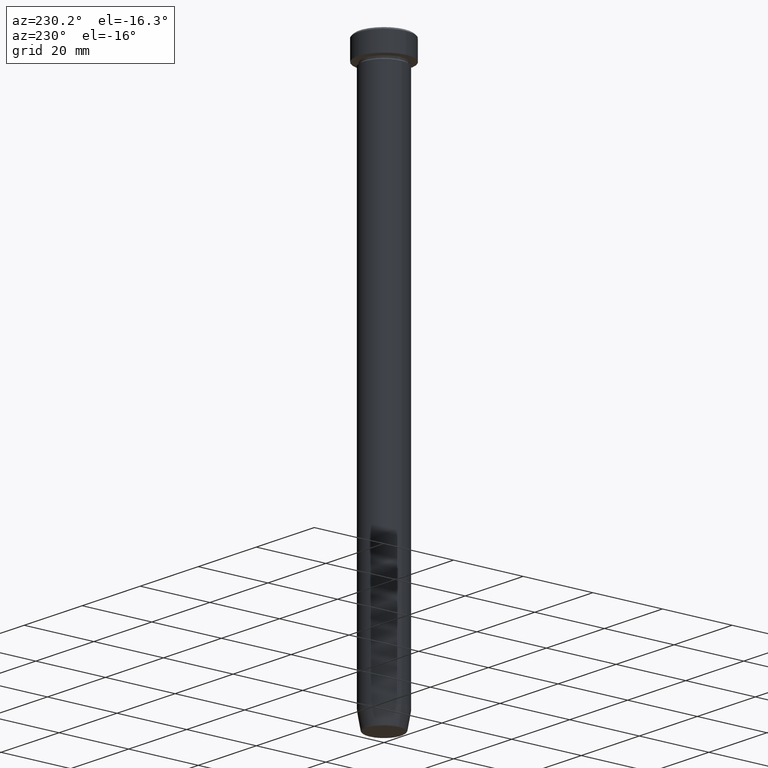
[diagram: clean part render]
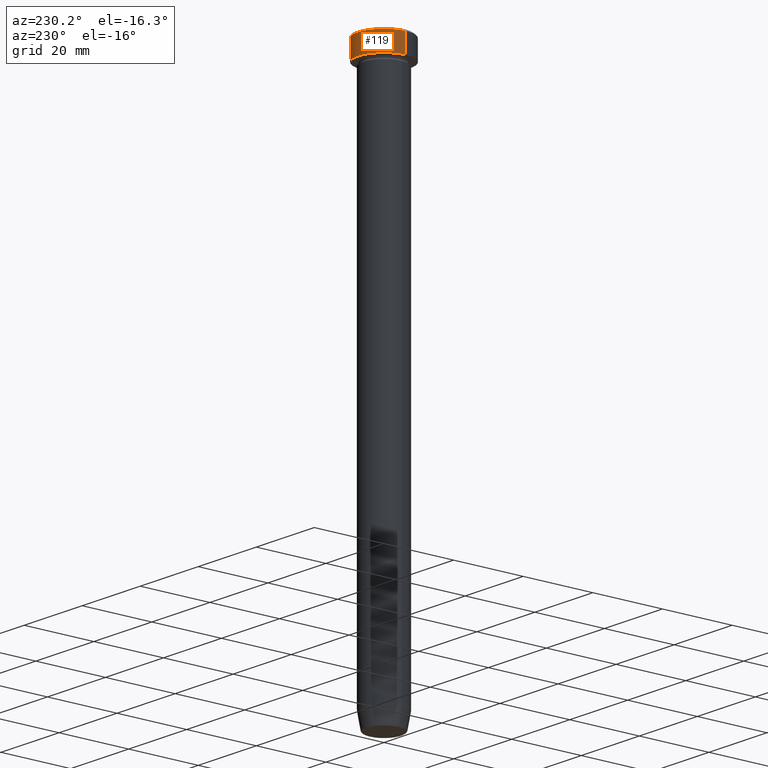
[diagram: same view with one face highlighted and labeled with its STEP entity id]
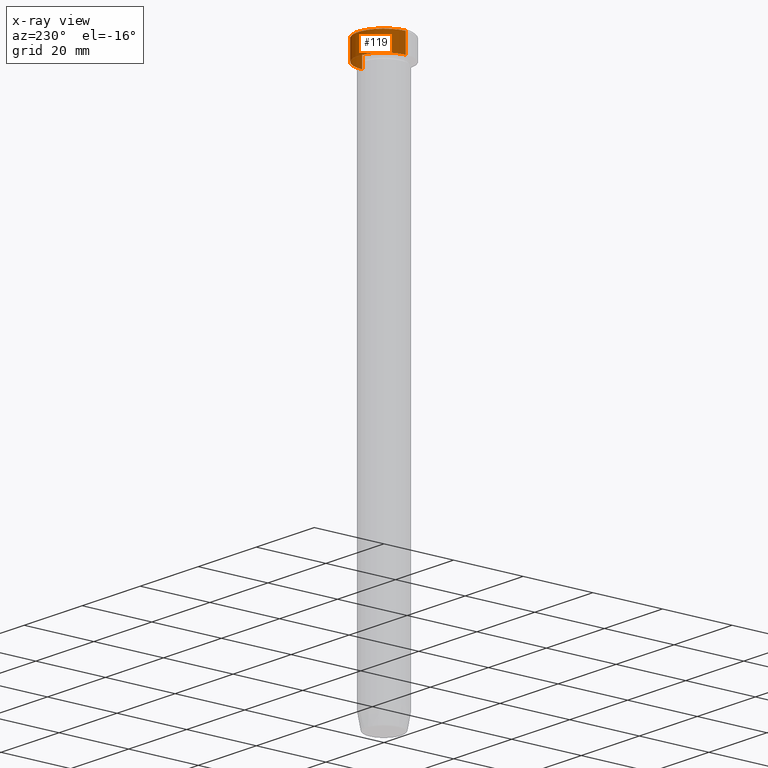
[diagram: x-ray of the same camera — body ghosted, the highlighted face saturated]
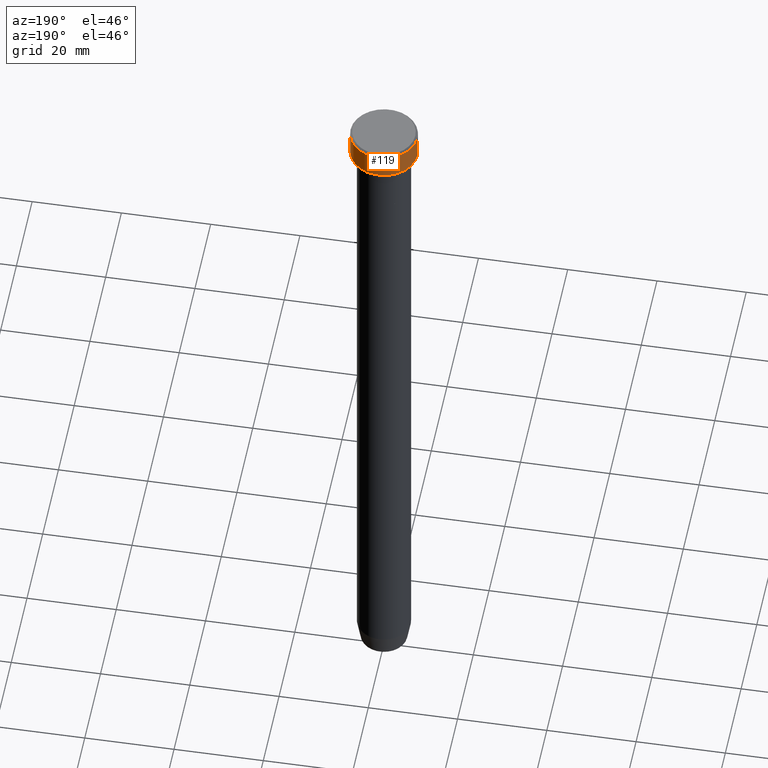
[diagram: same view with one face highlighted and labeled with its STEP entity id]
A machine part, auxiliary view. The second image highlights one B-rep face of the part: STEP entity #119.
The next image is the same camera in x-ray: the body ghosted, the highlighted face saturated — about 0% of this face is hidden behind the body in this view.
A second angle (auxiliary view) of the same face is appended — the face is thin or edge-on in the first view.
In plain terms, the highlighted cylindrical surface (edge-blend (fillet) strip) has radius 7.5 mm, axis along (-0, -0, 1).
Its self-contained STEP definition (entity closure, byte-faithful):
#15 = VERTEX_POINT ( 'NONE', #91 ) ;
#17 = DIRECTION ( 'NONE',  ( 0.000000000000000000, 0.000000000000000000, -1.000000000000000000 ) ) ;
#49 = VERTEX_POINT ( 'NONE', #286 ) ;
#91 = CARTESIAN_POINT ( 'NONE',  ( 7.500000000000000000, 0.000000000000000000, -6.000000000000000000 ) ) ;
#96 = DIRECTION ( 'NONE',  ( -0.000000000000000000, -0.000000000000000000, 1.000000000000000000 ) ) ;
#110 = CIRCLE ( 'NONE', #563, 7.500000000000000000 ) ;
#111 = EDGE_CURVE ( 'NONE', #203, #599, #125, .T. ) ;
#119 = ADVANCED_FACE ( 'NONE', ( #295 ), #579, .T. ) ;
#123 = CARTESIAN_POINT ( 'NONE',  ( -7.500000000000000000, 9.184850993605147944E-16, 0.000000000000000000 ) ) ;
#125 = LINE ( 'NONE', #123, #527 ) ;
#135 = LINE ( 'NONE', #315, #511 ) ;
#158 = CARTESIAN_POINT ( 'NONE',  ( 0.000000000000000000, 0.000000000000000000, -0.4999999999999987232 ) ) ;
#164 = CARTESIAN_POINT ( 'NONE',  ( 0.000000000000000000, 0.000000000000000000, 0.000000000000000000 ) ) ;
#193 = EDGE_LOOP ( 'NONE', ( #591, #238, #483, #316 ) ) ;
#203 = VERTEX_POINT ( 'NONE', #543 ) ;
#228 = CARTESIAN_POINT ( 'NONE',  ( -7.500000000000000000, 9.184850993605147944E-16, -0.4999999999999987232 ) ) ;
#238 = ORIENTED_EDGE ( 'NONE', *, *, #111, .T. ) ;
#252 = DIRECTION ( 'NONE',  ( 1.000000000000000000, 0.000000000000000000, 0.000000000000000000 ) ) ;
#264 = CARTESIAN_POINT ( 'NONE',  ( 0.000000000000000000, 0.000000000000000000, -6.000000000000000000 ) ) ;
#266 = EDGE_CURVE ( 'NONE', #15, #49, #135, .T. ) ;
#286 = CARTESIAN_POINT ( 'NONE',  ( 7.500000000000000000, 0.000000000000000000, -0.4999999999999987232 ) ) ;
#295 = FACE_OUTER_BOUND ( 'NONE', #193, .T. ) ;
#311 = DIRECTION ( 'NONE',  ( -0.000000000000000000, -0.000000000000000000, 1.000000000000000000 ) ) ;
#315 = CARTESIAN_POINT ( 'NONE',  ( 7.500000000000000000, 0.000000000000000000, 0.000000000000000000 ) ) ;
#316 = ORIENTED_EDGE ( 'NONE', *, *, #266, .F. ) ;
#395 = DIRECTION ( 'NONE',  ( -0.000000000000000000, -0.000000000000000000, 1.000000000000000000 ) ) ;
#397 = EDGE_CURVE ( 'NONE', #15, #203, #110, .T. ) ;
#403 = AXIS2_PLACEMENT_3D ( 'NONE', #158, #17, #252 ) ;
#422 = EDGE_CURVE ( 'NONE', #599, #49, #528, .T. ) ;
#425 = AXIS2_PLACEMENT_3D ( 'NONE', #164, #311, #501 ) ;
#428 = DIRECTION ( 'NONE',  ( -0.000000000000000000, -0.000000000000000000, 1.000000000000000000 ) ) ;
#433 = DIRECTION ( 'NONE',  ( 1.000000000000000000, 0.000000000000000000, 0.000000000000000000 ) ) ;
#483 = ORIENTED_EDGE ( 'NONE', *, *, #422, .T. ) ;
#501 = DIRECTION ( 'NONE',  ( 1.000000000000000000, 0.000000000000000000, 0.000000000000000000 ) ) ;
#511 = VECTOR ( 'NONE', #96, 1000.000000000000000 ) ;
#527 = VECTOR ( 'NONE', #428, 1000.000000000000000 ) ;
#528 = CIRCLE ( 'NONE', #403, 7.500000000000000000 ) ;
#543 = CARTESIAN_POINT ( 'NONE',  ( -7.500000000000000000, 9.184850993605147944E-16, -6.000000000000000000 ) ) ;
#563 = AXIS2_PLACEMENT_3D ( 'NONE', #264, #395, #433 ) ;
#579 = CYLINDRICAL_SURFACE ( 'NONE', #425, 7.500000000000000000 ) ;
#591 = ORIENTED_EDGE ( 'NONE', *, *, #397, .T. ) ;
#599 = VERTEX_POINT ( 'NONE', #228 ) ;